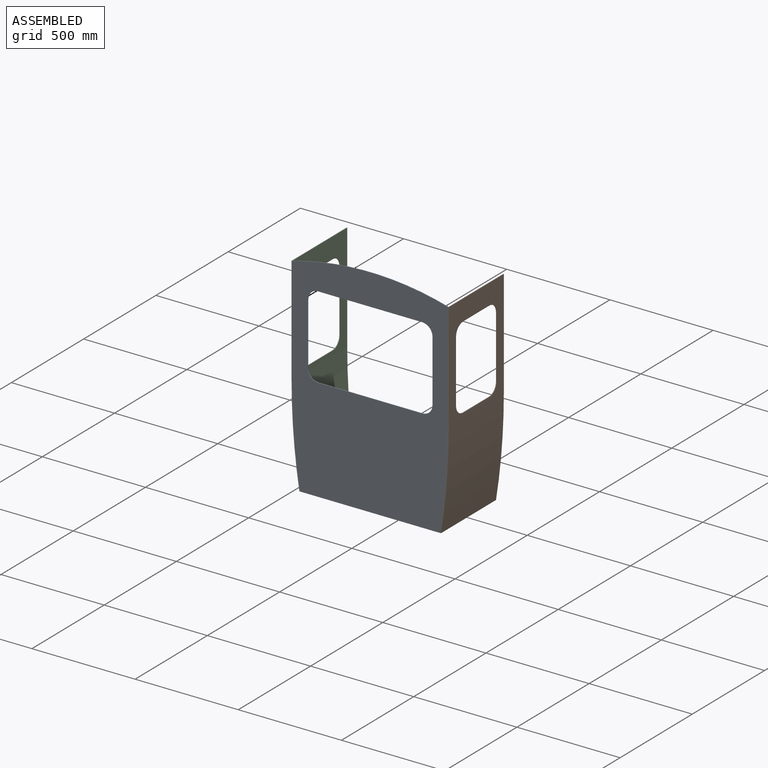
[diagram: assembled view]
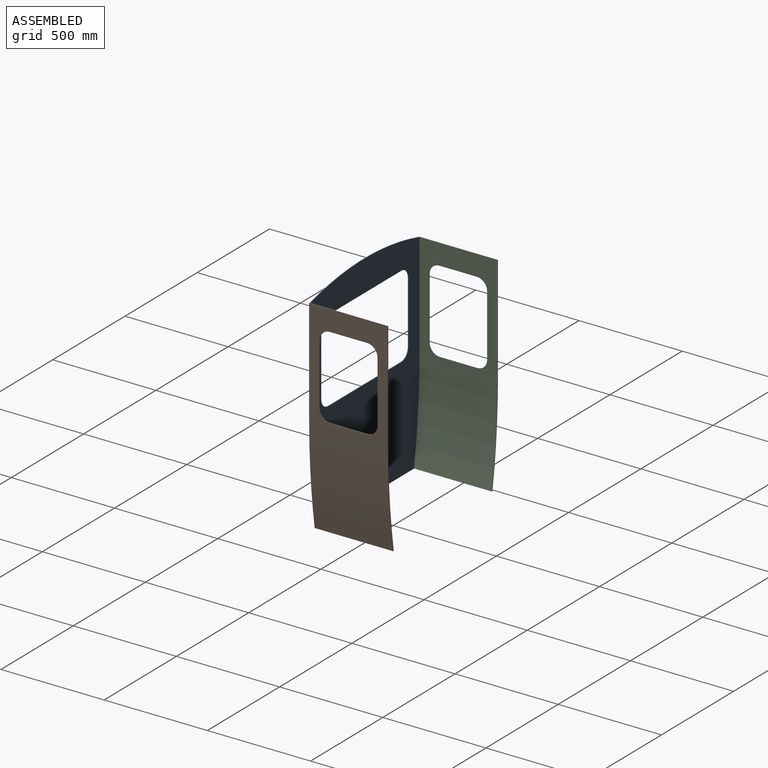
[diagram: assembled view, second angle]
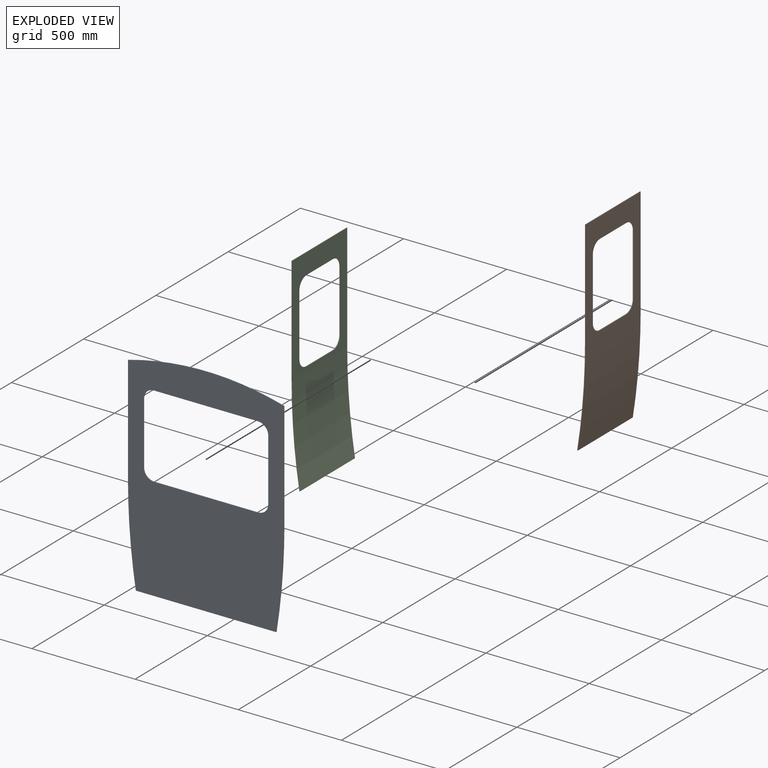
[diagram: exploded view]
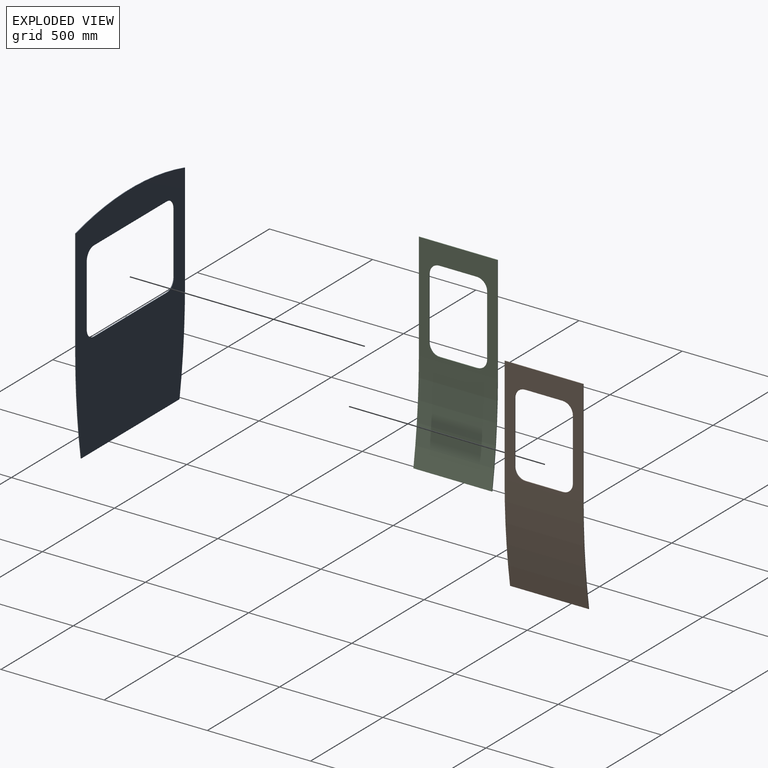
[diagram: exploded view, second angle]
ASSEMBLY  parts=3 mates=2
PART A: 16 faces, bbox 756x3x1051 mm
  f0: cylinder r=50mm len=50mm, axis (0,-1,0), area 235.6mm2, adj f1,f13,f14,f15
  f1: plane 300x3mm, normal (-1,0,0), area 900mm2, adj f0,f2,f14,f15
  f2: cylinder r=50mm len=50mm, axis (0,-1,0), area 235.6mm2, adj f1,f3,f14,f15
  f3: plane 504x3mm, normal (0,0,-1), area 1512mm2, adj f2,f4,f14,f15
  f4: cylinder r=50mm len=50mm, axis (0,-1,0), area 235.6mm2, adj f3,f5,f14,f15
  f5: plane 300x3mm, normal (1,0,0), area 900mm2, adj f4,f6,f14,f15
  f6: cylinder r=50mm len=50mm, axis (0,-1,0), area 235.6mm2, adj f5,f13,f14,f15
  f7: plane 520x3mm, normal (1,0,0), area 1560mm2, adj f8,f12,f14,f15
  f8: cylinder r=3050.58mm len=480mm, axis (0,-1,0), area 1446mm2, adj f7,f9,f14,f15
  f9: plane 680x3mm, normal (0,0,-1), area 2040mm2, adj f8,f10,f14,f15
  f10: cylinder r=3050.58mm len=480mm, axis (0,-1,0), area 1446mm2, adj f9,f11,f14,f15
  f11: plane 520x3mm, normal (-1,0,0), area 1560mm2, adj f10,f12,f14,f15
  f12: cylinder r=1426.32mm len=756mm, axis (0,-1,0), area 2295.4mm2, adj f7,f11,f14,f15
  f13: plane 504x3mm, normal (0,0,1), area 1512mm2, adj f0,f6,f14,f15
  f14: plane 1051x756mm, normal (0,1,0), area 530213.8mm2, adj f0,f1,f2,f3,f4,f5,f6,f7
  f15: plane 1051x756mm, normal (0,-1,0), area 530213.8mm2, adj f0,f1,f2,f3,f4,f5,f6,f7
PART B: 16 faces, bbox 381x41x1000 mm
  f0: plane 520x381mm, normal (0,1,0), area 87866mm2, adj f2,f3,f4,f6,f8,f9,f10,f11
  f1: plane 520x381mm, normal (0,-1,0), area 87866mm2, adj f2,f3,f4,f7,f8,f9,f10,f11
  f2: plane 381x3mm, normal (0,0,1), area 1143mm2, adj f0,f1,f3,f4
  f3: plane 1000x40.96mm, normal (1,0,0), area 3005.3mm2, adj f0,f1,f2,f5,f6,f7
  f4: plane 1000x40.96mm, normal (-1,0,0), area 3005.3mm2, adj f0,f1,f2,f5,f6,f7
  f5: plane 381x2.96mm, normal (0,-0.16,-0.99), area 1143mm2, adj f3,f4,f6,f7
  f6: cylinder r=3050.58mm len=480mm, axis (-1,0,0), area 183643.2mm2, adj f0,f3,f4,f5
  f7: cylinder r=3047.58mm len=479.53mm, axis (-1,0,0), area 183462.6mm2, adj f1,f3,f4,f5
  f8: plane 181x3mm, normal (0,0,-1), area 543mm2, adj f0,f1,f9,f15
  f9: cylinder r=50mm len=50mm, axis (0,-1,0), area 235.6mm2, adj f0,f1,f8,f10
  f10: plane 300x3mm, normal (1,0,0), area 900mm2, adj f0,f1,f9,f11
  f11: cylinder r=50mm len=50mm, axis (0,-1,0), area 235.6mm2, adj f0,f1,f10,f12
  f12: plane 181x3mm, normal (0,0,1), area 543mm2, adj f0,f1,f11,f13
  f13: cylinder r=50mm len=50mm, axis (0,-1,0), area 235.6mm2, adj f0,f1,f12,f14
  f14: plane 300x3mm, normal (-1,0,0), area 900mm2, adj f0,f1,f13,f15
  f15: cylinder r=50mm len=50mm, axis (0,-1,0), area 235.6mm2, adj f0,f1,f8,f14
PART C: same geometry as B
PLACE A rot(axis=(0.24,-0.97,0.02),0deg) t=(-1783.17,786.33,715.12)mm
PLACE B rot(axis=(0,0,-1),90deg) t=(1151.38,1164.33,203.36)mm
PLACE C rot(axis=(0,0,1),90deg) t=(-370.41,783.33,203.36)mm
MATE fastened C.f4 <-> A.f15  axis (0,-1,0) through (12.49,783.33,1313.34)mm
MATE fastened A.f15 <-> B.f3  axis (0,-1,0) through (768.49,783.33,1313.34)mm
